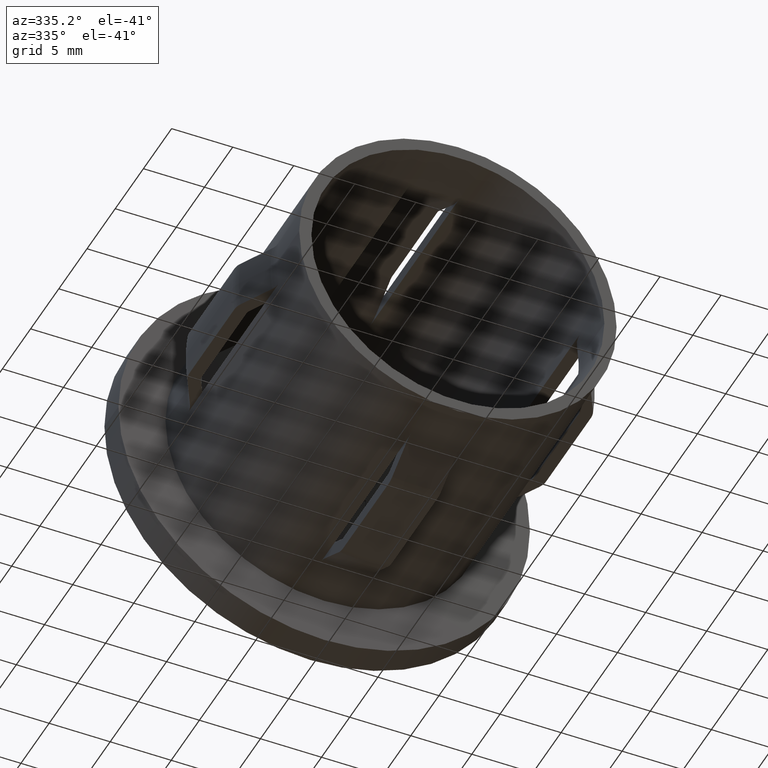
[diagram: clean part render]
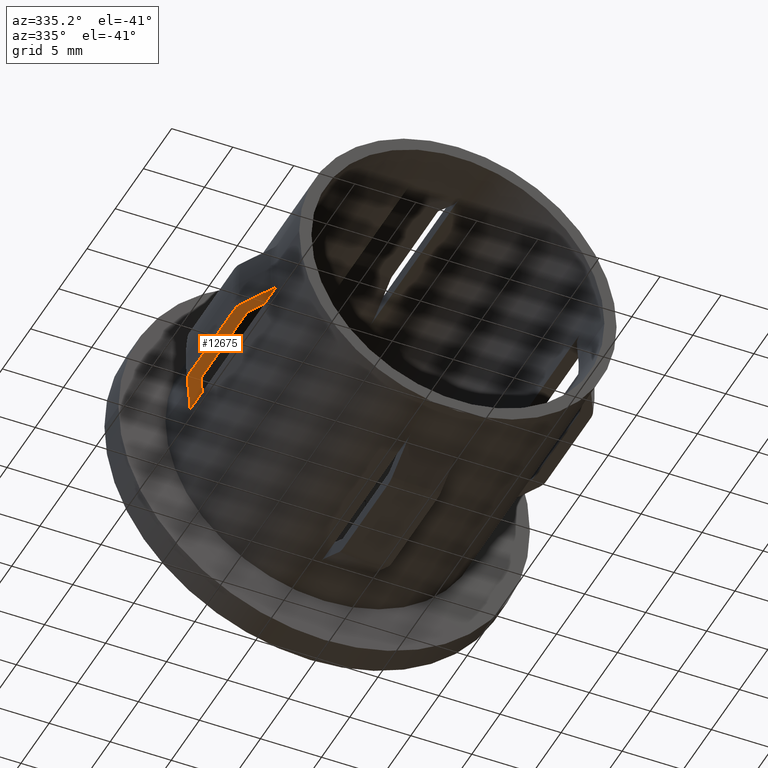
[diagram: same view with one face highlighted and labeled with its STEP entity id]
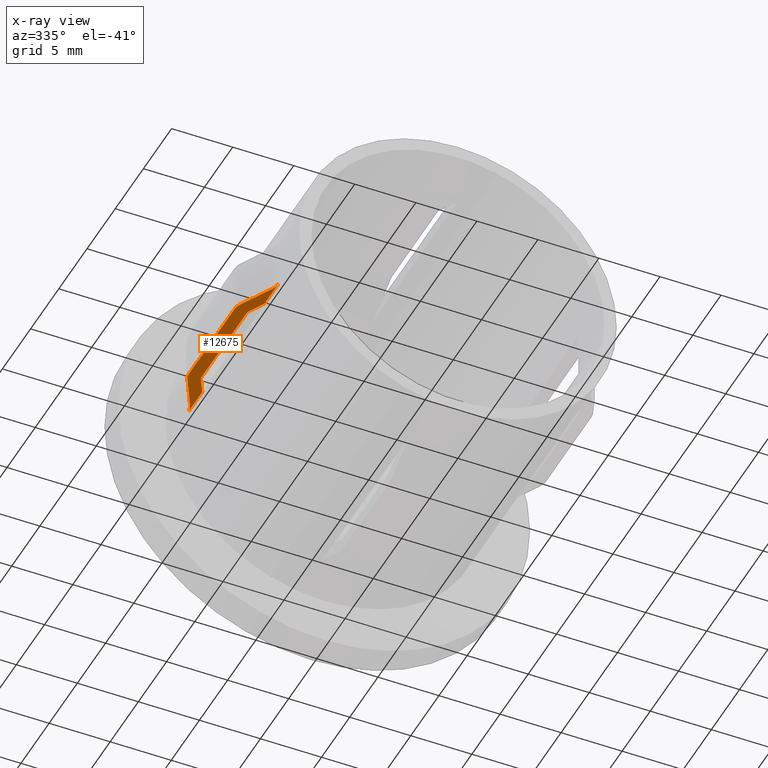
[diagram: x-ray of the same camera — body ghosted, the highlighted face saturated]
A machine part, auxiliary view. The second image highlights one B-rep face of the part: STEP entity #12675.
The next image is the same camera in x-ray: the body ghosted, the highlighted face saturated — about 0% of this face is hidden behind the body in this view.
In plain terms, the highlighted planar face has unit normal (0, 0, -1).
Its self-contained STEP definition (entity closure, byte-faithful):
#87 = B_SPLINE_CURVE_WITH_KNOTS ( 'NONE', 3,
 ( #13433, #5490, #4343, #12242, #10079, #14512 ),
 .UNSPECIFIED., .F., .F.,
 ( 4, 2, 4 ),
 ( 0.009377356494075202500, 0.009746857201713921000, 0.01011635790935263900 ),
 .UNSPECIFIED. ) ;
#205 = EDGE_CURVE ( 'NONE', #1058, #8209, #9433, .T. ) ;
#292 = EDGE_LOOP ( 'NONE', ( #10768, #6593, #5449, #4510, #8478, #13192, #2826, #7153, #7547, #3984, #8664, #7818, #11004, #559 ) ) ;
#347 = VERTEX_POINT ( 'NONE', #1645 ) ;
#407 = CARTESIAN_POINT ( 'NONE',  ( -13.60376786041279800, 8.000000000000000000, -2.000000000000000000 ) ) ;
#426 = CARTESIAN_POINT ( 'NONE',  ( -13.42844339235147700, 18.55312756011672800, -2.000000000000000000 ) ) ;
#444 = CARTESIAN_POINT ( 'NONE',  ( -13.56284329179614400, 16.20134004044726300, -2.000000000000000000 ) ) ;
#522 = CARTESIAN_POINT ( 'NONE',  ( -13.82916355188984200, 17.81858497931024500, -2.000000000000000000 ) ) ;
#559 = ORIENTED_EDGE ( 'NONE', *, *, #10501, .T. ) ;
#798 = EDGE_CURVE ( 'NONE', #11027, #4524, #9887, .T. ) ;
#899 = CARTESIAN_POINT ( 'NONE',  ( -12.92206128737247700, 4.486955712604515000, -2.000000000000000000 ) ) ;
#1058 = VERTEX_POINT ( 'NONE', #8153 ) ;
#1072 = VERTEX_POINT ( 'NONE', #5833 ) ;
#1085 = DIRECTION ( 'NONE',  ( -1.000000000000000000, 0.0000000000000000000, -3.438152136007669000E-017 ) ) ;
#1412 = CARTESIAN_POINT ( 'NONE',  ( -13.60376786041291000, 16.04103628964054500, -2.000000000000000000 ) ) ;
#1549 = CARTESIAN_POINT ( 'NONE',  ( -13.59866907585666800, 16.08207269628396600, -2.000000000000000000 ) ) ;
#1605 = CARTESIAN_POINT ( 'NONE',  ( -13.60376786041280000, 7.958499569817576000, -2.000000000000000000 ) ) ;
#1614 = VERTEX_POINT ( 'NONE', #6037 ) ;
#1645 = CARTESIAN_POINT ( 'NONE',  ( -13.60376786041279800, 8.000000000000000000, -2.000000000000000000 ) ) ;
#1784 = CARTESIAN_POINT ( 'NONE',  ( -12.84523257866513600, 17.51576344125173900, -2.000000000000000000 ) ) ;
#1795 = CARTESIAN_POINT ( 'NONE',  ( -14.43205297699419100, 16.71250800950036800, -2.000000000000000000 ) ) ;
#1872 = DIRECTION ( 'NONE',  ( -0.0000000000000000000, -1.000000000000000000, -0.0000000000000000000 ) ) ;
#1929 = CARTESIAN_POINT ( 'NONE',  ( -13.17815796277381700, 16.90619697346617300, -2.000000000000000000 ) ) ;
#2058 = EDGE_CURVE ( 'NONE', #3297, #1614, #5717, .T. ) ;
#2080 = PLANE ( 'NONE',  #12031 ) ;
#2221 = CARTESIAN_POINT ( 'NONE',  ( -12.84523257866513600, 4.000000000000000000, -2.000000000000000000 ) ) ;
#2385 = CARTESIAN_POINT ( 'NONE',  ( -14.61377774567548600, 16.00000000000000000, -2.000000000000000000 ) ) ;
#2490 = CARTESIAN_POINT ( 'NONE',  ( -12.84523257866513600, 6.484236558748251300, -2.000000000000000000 ) ) ;
#2787 = CARTESIAN_POINT ( 'NONE',  ( -13.54311138844929600, 16.23750266983346100, -2.000000000000000000 ) ) ;
#2826 = ORIENTED_EDGE ( 'NONE', *, *, #4784, .T. ) ;
#2915 = CARTESIAN_POINT ( 'NONE',  ( -13.46818463121636200, 5.519878851326366100, -2.000000000000000000 ) ) ;
#3015 = CARTESIAN_POINT ( 'NONE',  ( -13.93641627807915000, 6.378199766889108200, -2.000000000000000000 ) ) ;
#3146 = CARTESIAN_POINT ( 'NONE',  ( -14.61377774567548600, 7.999999999999996400, -2.000000000000000000 ) ) ;
#3154 = CARTESIAN_POINT ( 'NONE',  ( -13.34453860178170000, 16.60136894398342700, -2.000000000000000000 ) ) ;
#3216 = CARTESIAN_POINT ( 'NONE',  ( -12.96824640526884500, 4.604195875573656900, -2.000000000000000000 ) ) ;
#3297 = VERTEX_POINT ( 'NONE', #2221 ) ;
#3444 = EDGE_CURVE ( 'NONE', #1072, #347, #6869, .T. ) ;
#3462 = CARTESIAN_POINT ( 'NONE',  ( -12.84523257866513600, 20.00000000000000000, -2.000000000000000000 ) ) ;
#3608 = DIRECTION ( 'NONE',  ( -0.0000000000000000000, -1.000000000000000000, -0.0000000000000000000 ) ) ;
#3718 = CARTESIAN_POINT ( 'NONE',  ( -12.92142791447136800, 6.623713609272059900, -2.000000000000000000 ) ) ;
#3878 = CARTESIAN_POINT ( 'NONE',  ( -14.61377774567548600, 20.00000000000000000, -2.000000000000000000 ) ) ;
#3915 = CARTESIAN_POINT ( 'NONE',  ( -14.43205297699419100, 16.71250800950036800, -2.000000000000000000 ) ) ;
#3984 = ORIENTED_EDGE ( 'NONE', *, *, #8742, .T. ) ;
#4009 = VECTOR ( 'NONE', #6149, 1000.000000000000000 ) ;
#4013 = CARTESIAN_POINT ( 'NONE',  ( -13.60376786041279700, 26.19999999999999900, -2.000000000000000000 ) ) ;
#4092 = VERTEX_POINT ( 'NONE', #9708 ) ;
#4343 = CARTESIAN_POINT ( 'NONE',  ( -12.92219622833143200, 19.51260326669342100, -2.000000000000000000 ) ) ;
#4510 = ORIENTED_EDGE ( 'NONE', *, *, #13177, .T. ) ;
#4524 = VERTEX_POINT ( 'NONE', #2787 ) ;
#4560 = EDGE_CURVE ( 'NONE', #11543, #8209, #7032, .T. ) ;
#4605 = CARTESIAN_POINT ( 'NONE',  ( -14.61377774567550800, 7.876265836680742500, -2.000000000000000000 ) ) ;
#4721 = B_SPLINE_CURVE_WITH_KNOTS ( 'NONE', 3,
 ( #407, #1605, #7233, #8321, #5044, #10591 ),
 .UNSPECIFIED., .F., .F.,
 ( 4, 2, 4 ),
 ( 0.003036136518779696800, 0.003159131263739861500, 0.003282126008700025700 ),
 .UNSPECIFIED. ) ;
#4784 = EDGE_CURVE ( 'NONE', #4092, #8546, #11679, .T. ) ;
#5044 = CARTESIAN_POINT ( 'NONE',  ( -13.56286601364982000, 7.798701601859557200, -2.000000000000000000 ) ) ;
#5093 = CARTESIAN_POINT ( 'NONE',  ( -12.84523257866513600, 6.484236558748251300, -2.000000000000000000 ) ) ;
#5098 = B_SPLINE_CURVE_WITH_KNOTS ( 'NONE', 3,
 ( #6034, #14015, #7208, #13972, #522, #426, #9429 ),
 .UNSPECIFIED., .F., .F.,
 ( 4, 3, 4 ),
 ( 0.005560957864381510000, 0.005983935544222426800, 0.008494147510220448000 ),
 .UNSPECIFIED. ) ;
#5281 = CARTESIAN_POINT ( 'NONE',  ( -13.68844346346802400, 5.923637896289911000, -2.000000000000000000 ) ) ;
#5303 = EDGE_CURVE ( 'NONE', #14207, #11027, #8417, .T. ) ;
#5430 = VECTOR ( 'NONE', #1872, 1000.000000000000000 ) ;
#5449 = ORIENTED_EDGE ( 'NONE', *, *, #798, .T. ) ;
#5490 = CARTESIAN_POINT ( 'NONE',  ( -12.96769951141780400, 19.39680555347600000, -2.000000000000000000 ) ) ;
#5702 = CARTESIAN_POINT ( 'NONE',  ( -14.53728203803428400, 7.513440986996469600, -2.000000000000000000 ) ) ;
#5717 = B_SPLINE_CURVE_WITH_KNOTS ( 'NONE', 3,
 ( #8895, #7774, #6488, #899, #3216, #8847 ),
 .UNSPECIFIED., .F., .F.,
 ( 4, 2, 4 ),
 ( 0.009331489505692324900, 0.009700757547867252400, 0.01007002559004218200 ),
 .UNSPECIFIED. ) ;
#5721 = EDGE_CURVE ( 'NONE', #347, #4092, #4721, .T. ) ;
#5752 = CARTESIAN_POINT ( 'NONE',  ( -14.49142627191921800, 7.396444245947856500, -2.000000000000000000 ) ) ;
#5833 = CARTESIAN_POINT ( 'NONE',  ( -13.60376786041955600, 15.99999999999916200, -2.000000000000000000 ) ) ;
#5948 = CARTESIAN_POINT ( 'NONE',  ( -13.38671445498841800, 7.475868907025220400, -2.000000000000000000 ) ) ;
#6001 = CARTESIAN_POINT ( 'NONE',  ( -13.57818986444589100, 16.16242516550145000, -2.000000000000000000 ) ) ;
#6034 = CARTESIAN_POINT ( 'NONE',  ( -14.43205297699419100, 16.71250800950036800, -2.000000000000000000 ) ) ;
#6037 = CARTESIAN_POINT ( 'NONE',  ( -13.02739711599986100, 4.712508009501687100, -2.000000000000000000 ) ) ;
#6149 = DIRECTION ( 'NONE',  ( -0.0000000000000000000, -1.000000000000000000, -0.0000000000000000000 ) ) ;
#6224 = CARTESIAN_POINT ( 'NONE',  ( -14.61377774567548600, 16.00000000000000000, -2.000000000000000000 ) ) ;
#6488 = CARTESIAN_POINT ( 'NONE',  ( -12.86102914181321000, 4.248422804270638200, -2.000000000000000000 ) ) ;
#6593 = ORIENTED_EDGE ( 'NONE', *, *, #5303, .T. ) ;
#6869 = LINE ( 'NONE', #4013, #13581 ) ;
#7032 = LINE ( 'NONE', #3878, #4009 ) ;
#7035 = CARTESIAN_POINT ( 'NONE',  ( -13.23027302087236900, 7.189264759861258900, -2.000000000000000000 ) ) ;
#7153 = ORIENTED_EDGE ( 'NONE', *, *, #7591, .T. ) ;
#7208 = CARTESIAN_POINT ( 'NONE',  ( -14.29711361073644400, 16.96011052680198400, -2.000000000000000000 ) ) ;
#7233 = CARTESIAN_POINT ( 'NONE',  ( -13.59851344099410200, 7.917035027896522700, -2.000000000000000000 ) ) ;
#7318 = CARTESIAN_POINT ( 'NONE',  ( -14.61377774567548500, 16.12419483703553200, -2.000000000000000000 ) ) ;
#7547 = ORIENTED_EDGE ( 'NONE', *, *, #2058, .T. ) ;
#7591 = EDGE_CURVE ( 'NONE', #8546, #3297, #13228, .T. ) ;
#7774 = CARTESIAN_POINT ( 'NONE',  ( -12.84523257866512900, 4.124295545571751400, -2.000000000000000000 ) ) ;
#7818 = ORIENTED_EDGE ( 'NONE', *, *, #4560, .F. ) ;
#7908 = B_SPLINE_CURVE_WITH_KNOTS ( 'NONE', 3,
 ( #6224, #7318, #14222, #10765, #8547, #1795 ),
 .UNSPECIFIED., .F., .F.,
 ( 4, 2, 4 ),
 ( 0.009228237804563312100, 0.009597274875274577900, 0.009966311945985842000 ),
 .UNSPECIFIED. ) ;
#8153 = CARTESIAN_POINT ( 'NONE',  ( -14.43205297699419600, 7.287491990499630900, -2.000000000000000000 ) ) ;
#8209 = VERTEX_POINT ( 'NONE', #3146 ) ;
#8321 = CARTESIAN_POINT ( 'NONE',  ( -13.57792859815826800, 7.836837133565489400, -2.000000000000000000 ) ) ;
#8417 = LINE ( 'NONE', #8817, #5430 ) ;
#8478 = ORIENTED_EDGE ( 'NONE', *, *, #3444, .T. ) ;
#8546 = VERTEX_POINT ( 'NONE', #5093 ) ;
#8547 = CARTESIAN_POINT ( 'NONE',  ( -14.49156430391481900, 16.60330246008785000, -2.000000000000000000 ) ) ;
#8664 = ORIENTED_EDGE ( 'NONE', *, *, #205, .T. ) ;
#8733 = CARTESIAN_POINT ( 'NONE',  ( -13.24784037770890200, 5.116166389746441100, -2.000000000000000000 ) ) ;
#8742 = EDGE_CURVE ( 'NONE', #1614, #1058, #12605, .T. ) ;
#8817 = CARTESIAN_POINT ( 'NONE',  ( -12.84523257866513600, 20.00000000000000000, -2.000000000000000000 ) ) ;
#8847 = CARTESIAN_POINT ( 'NONE',  ( -13.02739711599986100, 4.712508009501687100, -2.000000000000000000 ) ) ;
#8895 = CARTESIAN_POINT ( 'NONE',  ( -12.84523257866513600, 4.000000000000000000, -2.000000000000000000 ) ) ;
#9098 = CARTESIAN_POINT ( 'NONE',  ( -13.54311138844931200, 7.762497330166533900, -2.000000000000000000 ) ) ;
#9209 = CARTESIAN_POINT ( 'NONE',  ( -14.43205297699419600, 7.287491990499630900, -2.000000000000000000 ) ) ;
#9429 = CARTESIAN_POINT ( 'NONE',  ( -13.02739711600255900, 19.28749199049963200, -2.000000000000000000 ) ) ;
#9433 = B_SPLINE_CURVE_WITH_KNOTS ( 'NONE', 3,
 ( #9209, #5752, #5702, #13599, #4605, #11325 ),
 .UNSPECIFIED., .F., .F.,
 ( 4, 2, 4 ),
 ( 0.009286884944671716300, 0.009655974678590691800, 0.01002506441250966700 ),
 .UNSPECIFIED. ) ;
#9708 = CARTESIAN_POINT ( 'NONE',  ( -13.54311138844931200, 7.762497330166533900, -2.000000000000000000 ) ) ;
#9767 = CARTESIAN_POINT ( 'NONE',  ( -13.54311138844929600, 16.23750266983346100, -2.000000000000000000 ) ) ;
#9829 = CARTESIAN_POINT ( 'NONE',  ( -14.18428084532560400, 6.832820700711934600, -2.000000000000000000 ) ) ;
#9887 = B_SPLINE_CURVE_WITH_KNOTS ( 'NONE', 3,
 ( #1784, #11932, #1929, #3154, #11983, #14411, #9767 ),
 .UNSPECIFIED., .F., .F.,
 ( 4, 3, 4 ),
 ( 0.004240751464034793300, 0.005282587785663465800, 0.005697111166196833600 ),
 .UNSPECIFIED. ) ;
#9987 = FACE_OUTER_BOUND ( 'NONE', #292, .T. ) ;
#10079 = CARTESIAN_POINT ( 'NONE',  ( -12.84523257866512900, 19.87674955539670700, -2.000000000000000000 ) ) ;
#10101 = EDGE_CURVE ( 'NONE', #11543, #14555, #7908, .T. ) ;
#10389 = CARTESIAN_POINT ( 'NONE',  ( -12.99761089599358300, 6.763197409493547400, -2.000000000000000000 ) ) ;
#10481 = CARTESIAN_POINT ( 'NONE',  ( -13.54311138844929600, 16.23750266983346100, -2.000000000000000000 ) ) ;
#10501 = EDGE_CURVE ( 'NONE', #14555, #11294, #5098, .T. ) ;
#10583 = CARTESIAN_POINT ( 'NONE',  ( -13.60376786041955600, 15.99999999999916200, -2.000000000000000000 ) ) ;
#10591 = CARTESIAN_POINT ( 'NONE',  ( -13.54311138844931200, 7.762497330166533900, -2.000000000000000000 ) ) ;
#10611 = CARTESIAN_POINT ( 'NONE',  ( -12.84523257866513600, 20.00000000000000000, -2.000000000000000000 ) ) ;
#10765 = CARTESIAN_POINT ( 'NONE',  ( -14.53685991535422900, 16.48782443175833700, -2.000000000000000000 ) ) ;
#10768 = ORIENTED_EDGE ( 'NONE', *, *, #13388, .T. ) ;
#10908 = CARTESIAN_POINT ( 'NONE',  ( -14.43205297699419600, 7.287491990499630900, -2.000000000000000000 ) ) ;
#10958 = CARTESIAN_POINT ( 'NONE',  ( -13.02739711599986100, 4.712508009501687100, -2.000000000000000000 ) ) ;
#11004 = ORIENTED_EDGE ( 'NONE', *, *, #10101, .T. ) ;
#11027 = VERTEX_POINT ( 'NONE', #11922 ) ;
#11257 = CARTESIAN_POINT ( 'NONE',  ( 6.876304272015336800E-017, 20.00000000000000000, -1.999999999999999600 ) ) ;
#11281 = VECTOR ( 'NONE', #3608, 1000.000000000000000 ) ;
#11294 = VERTEX_POINT ( 'NONE', #12869 ) ;
#11308 = DIRECTION ( 'NONE',  ( 3.438152136007669000E-017, 0.0000000000000000000, -1.000000000000000000 ) ) ;
#11325 = CARTESIAN_POINT ( 'NONE',  ( -14.61377774567548600, 7.999999999999996400, -2.000000000000000000 ) ) ;
#11543 = VERTEX_POINT ( 'NONE', #2385 ) ;
#11606 = CARTESIAN_POINT ( 'NONE',  ( -13.07378215503952200, 6.902687610284862900, -2.000000000000000000 ) ) ;
#11679 = B_SPLINE_CURVE_WITH_KNOTS ( 'NONE', 3,
 ( #9098, #5948, #7035, #11606, #10389, #3718, #2490 ),
 .UNSPECIFIED., .F., .F.,
 ( 4, 3, 4 ),
 ( 0.004303024004443774300, 0.005282586315741784900, 0.005759384067359768100 ),
 .UNSPECIFIED. ) ;
#11922 = CARTESIAN_POINT ( 'NONE',  ( -12.84523257866513600, 17.51576344125173900, -2.000000000000000000 ) ) ;
#11932 = CARTESIAN_POINT ( 'NONE',  ( -13.01172473102613300, 17.21099630424840800, -2.000000000000000000 ) ) ;
#11983 = CARTESIAN_POINT ( 'NONE',  ( -13.41073774696091000, 16.48008467017158900, -2.000000000000000000 ) ) ;
#12031 = AXIS2_PLACEMENT_3D ( 'NONE', #11257, #11308, #1085 ) ;
#12242 = CARTESIAN_POINT ( 'NONE',  ( -12.86102199424459200, 19.75151893978767200, -2.000000000000000000 ) ) ;
#12605 = B_SPLINE_CURVE_WITH_KNOTS ( 'NONE', 3,
 ( #10958, #8733, #2915, #5281, #3015, #9829, #10908 ),
 .UNSPECIFIED., .F., .F.,
 ( 4, 3, 4 ),
 ( 0.004604149730296209900, 0.005983938191045535600, 0.007537337865473103600 ),
 .UNSPECIFIED. ) ;
#12675 = ADVANCED_FACE ( 'NONE', ( #9987 ), #2080, .T. ) ;
#12869 = CARTESIAN_POINT ( 'NONE',  ( -13.02739711600255900, 19.28749199049963200, -2.000000000000000000 ) ) ;
#13177 = EDGE_CURVE ( 'NONE', #4524, #1072, #14308, .T. ) ;
#13192 = ORIENTED_EDGE ( 'NONE', *, *, #5721, .T. ) ;
#13228 = LINE ( 'NONE', #3462, #11281 ) ;
#13388 = EDGE_CURVE ( 'NONE', #11294, #14207, #87, .T. ) ;
#13433 = CARTESIAN_POINT ( 'NONE',  ( -13.02739711600255900, 19.28749199049963200, -2.000000000000000000 ) ) ;
#13581 = VECTOR ( 'NONE', #14382, 1000.000000000000000 ) ;
#13599 = CARTESIAN_POINT ( 'NONE',  ( -14.59807916656769500, 7.751917576499737500, -2.000000000000000000 ) ) ;
#13972 = CARTESIAN_POINT ( 'NONE',  ( -14.22963332444452400, 17.08390600611519300, -2.000000000000000000 ) ) ;
#14015 = CARTESIAN_POINT ( 'NONE',  ( -14.36458672975465600, 16.83631114039712500, -2.000000000000000000 ) ) ;
#14207 = VERTEX_POINT ( 'NONE', #10611 ) ;
#14222 = CARTESIAN_POINT ( 'NONE',  ( -14.59792760065790400, 16.24906364132012700, -2.000000000000000000 ) ) ;
#14308 = B_SPLINE_CURVE_WITH_KNOTS ( 'NONE', 3,
 ( #10481, #444, #6001, #1549, #1412, #10583 ),
 .UNSPECIFIED., .F., .F.,
 ( 4, 2, 4 ),
 ( 0.003007836548008435800, 0.003130776128305909800, 0.003253715708603383800 ),
 .UNSPECIFIED. ) ;
#14382 = DIRECTION ( 'NONE',  ( -7.347880794884120200E-017, -1.000000000000000000, 0.0000000000000000000 ) ) ;
#14411 = CARTESIAN_POINT ( 'NONE',  ( -13.47692855627201800, 16.35879584615232200, -2.000000000000000000 ) ) ;
#14512 = CARTESIAN_POINT ( 'NONE',  ( -12.84523257866513600, 20.00000000000000000, -2.000000000000000000 ) ) ;
#14555 = VERTEX_POINT ( 'NONE', #3915 ) ;